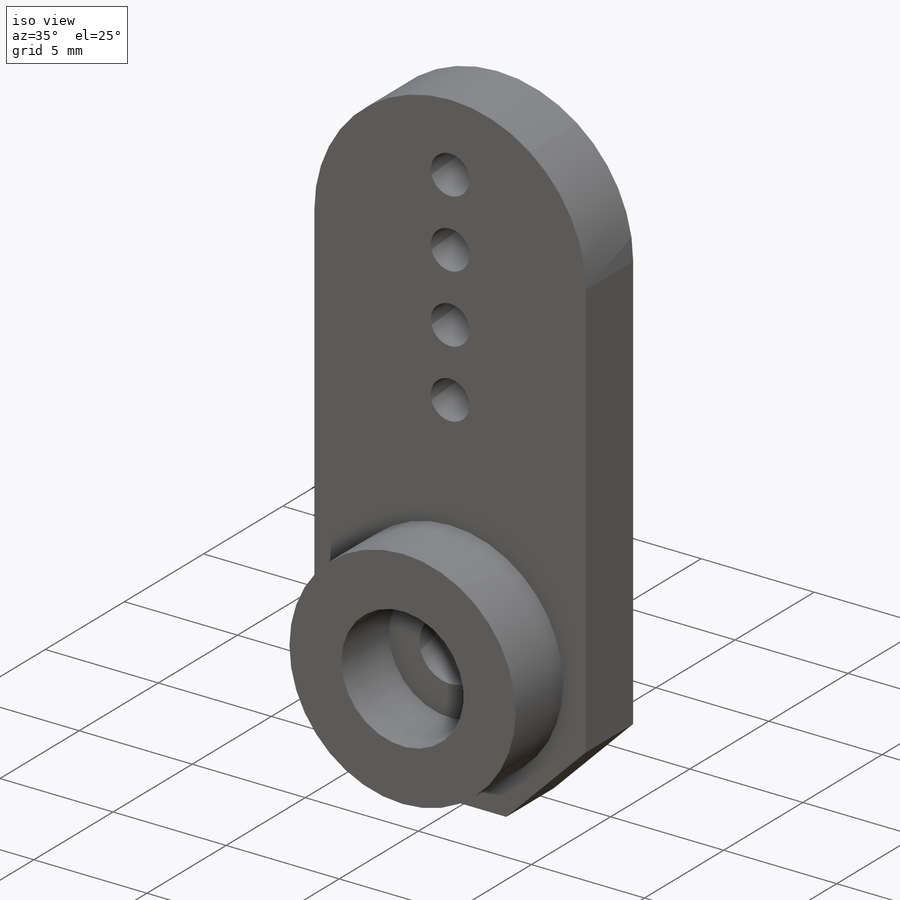
[diagram: iso view]
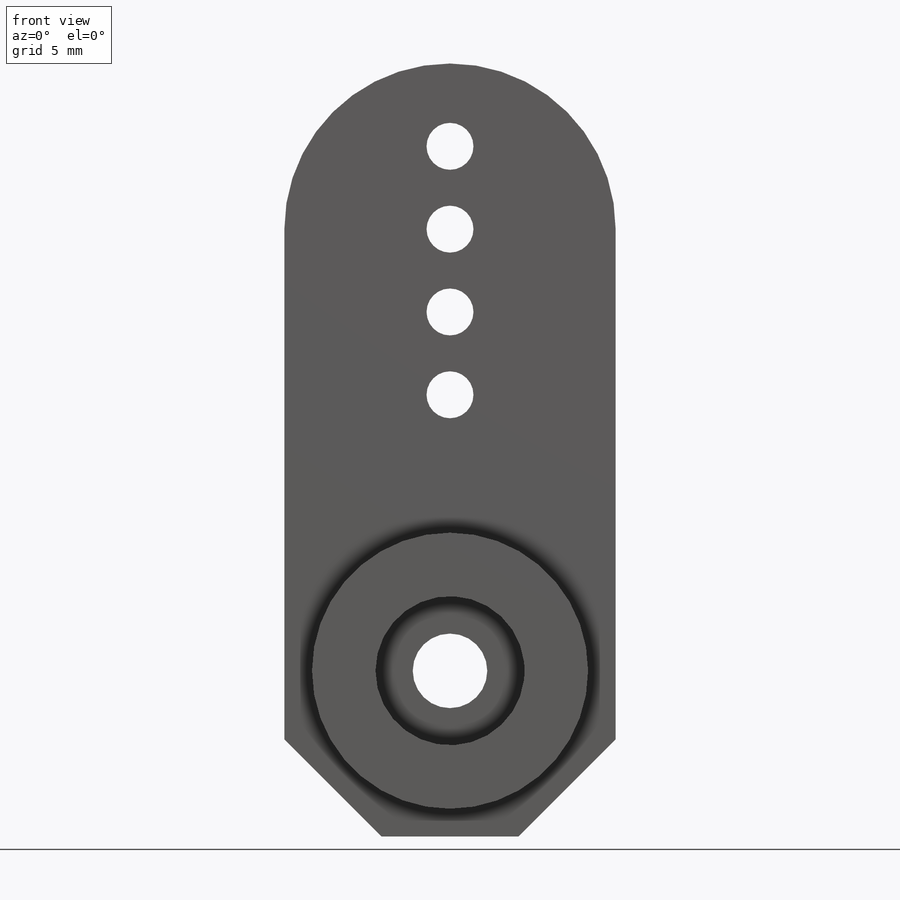
[diagram: front view]
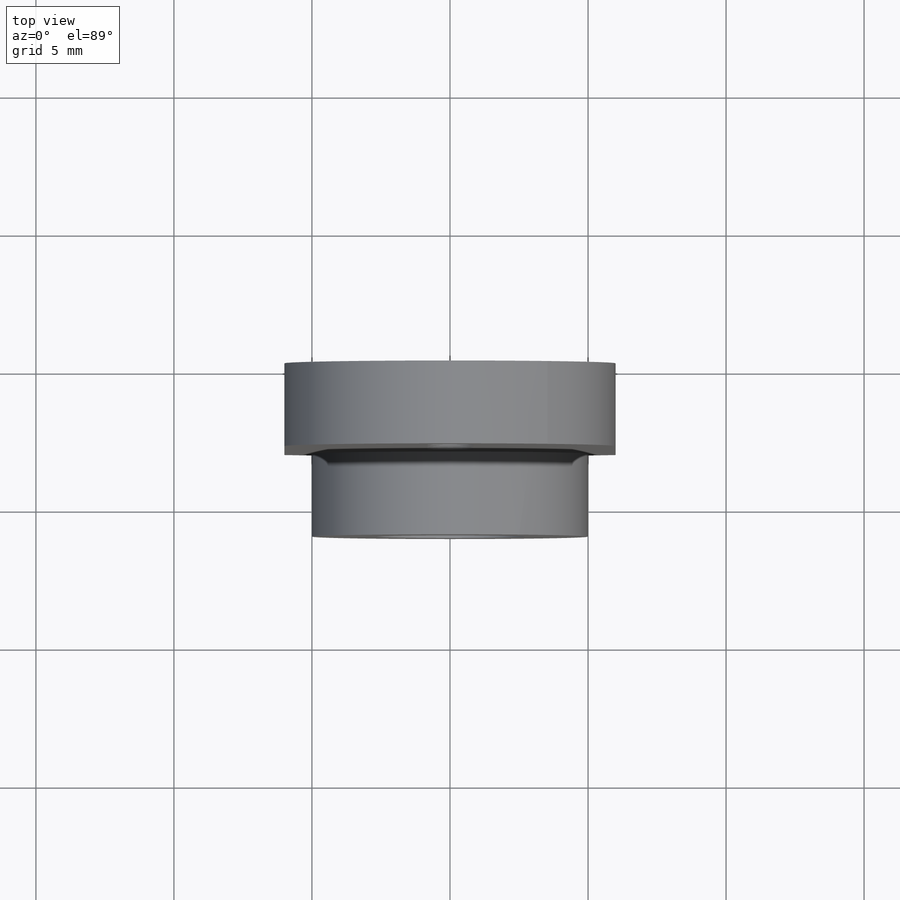
[diagram: top view]
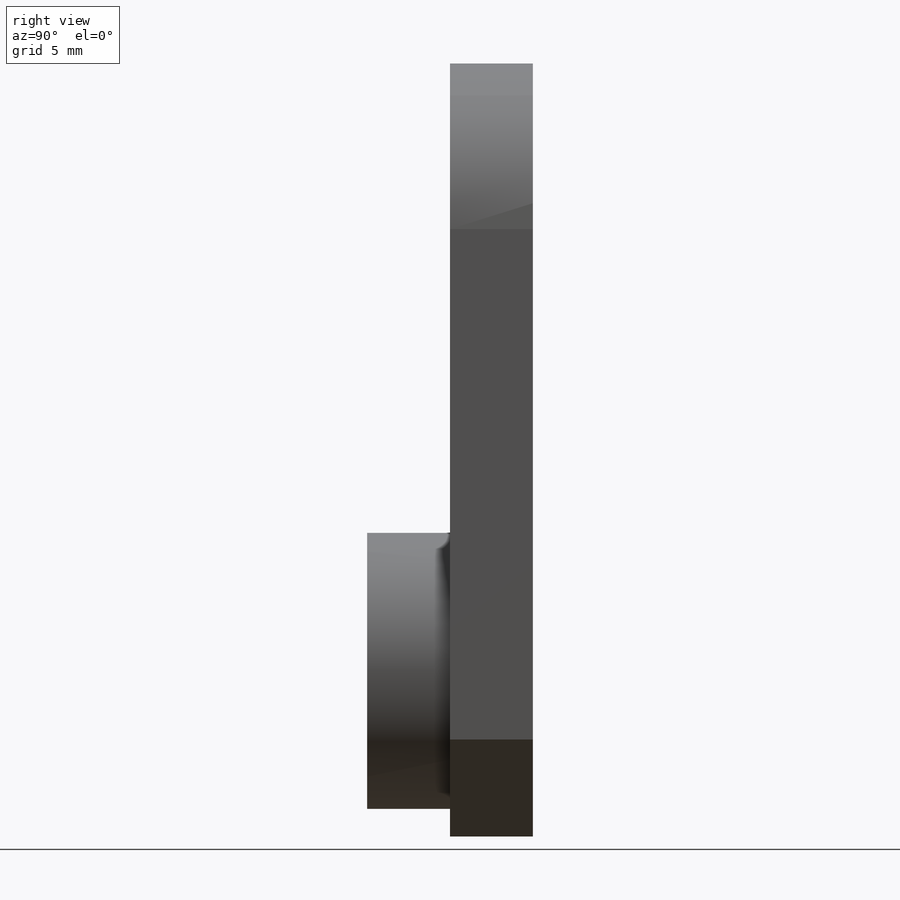
[diagram: right view]
SOLIDWORKS PART (.sldprt)
format: sldprt  version: not decoded by parser v0  size: 171,008 bytes
history: native  units: mm
features: plane x3, sketch x3, extrude x2, material x1, cut_extrude x1 (+13 scaffold rows collapsed)
feature tree (23):
  scaffold x13  (default folders/planes/origin — collapsed)
  material  "Материал <не указан>"
  plane  "Спереди"
  plane  "Сверху"
  plane  "Справа"
  sketch  "Эскиз1"  dims[c1.D3=~5.031433mm c1.D6=2.7mm c1.D7=1.7mm c1.D8=2.7mm c1.D9=2.7mm c1.D10=2.7mm c1.D11=1.7mm c1.D12=1.7mm c2.D9=1.7mm c2.D10=1.7mm c2.D11=1.7mm c2.D1=~13.093851mm c3.D1=45.0deg c3.D2=6.0mm c3.D3=16.0mm c3.D4=12.0mm c3.D5=6.0mm c3.D8=19.0mm c3.D9=16.0mm c3.D10=13.0mm c3.D11=10.0mm c4.D9=3.0mm c4.D10=3.0mm c4.D11=3.0mm]
  extrude  "Бобышка-Вытянуть1"  Depth=3mm
  sketch  "Эскиз2"  dims[D1=10.0mm D2=5.4mm]
  extrude  "Бобышка-Вытянуть2"  Depth=3mm
  sketch  "Эскиз3"  dims[D1=6.0mm]
  cut_extrude  "Вырез-Вытянуть1"  Depth=1.5mm
decode coverage: 6 of 6 modeling features carry decoded parameters
note: ~ marks probable driven/reference dimensions
note: suppression state not decoded; provenance and decode notes live in map.json
